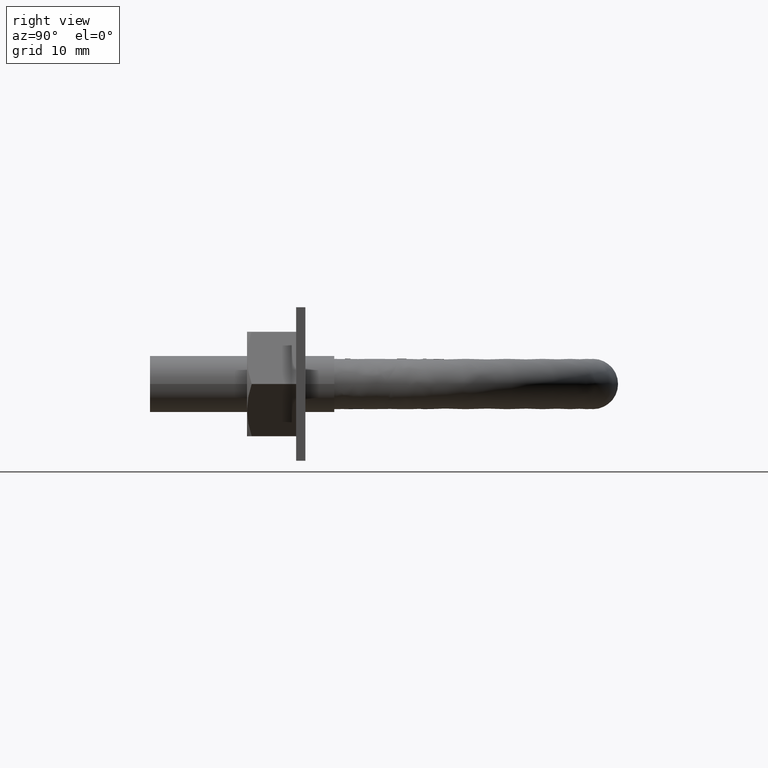
[diagram: clean part render]
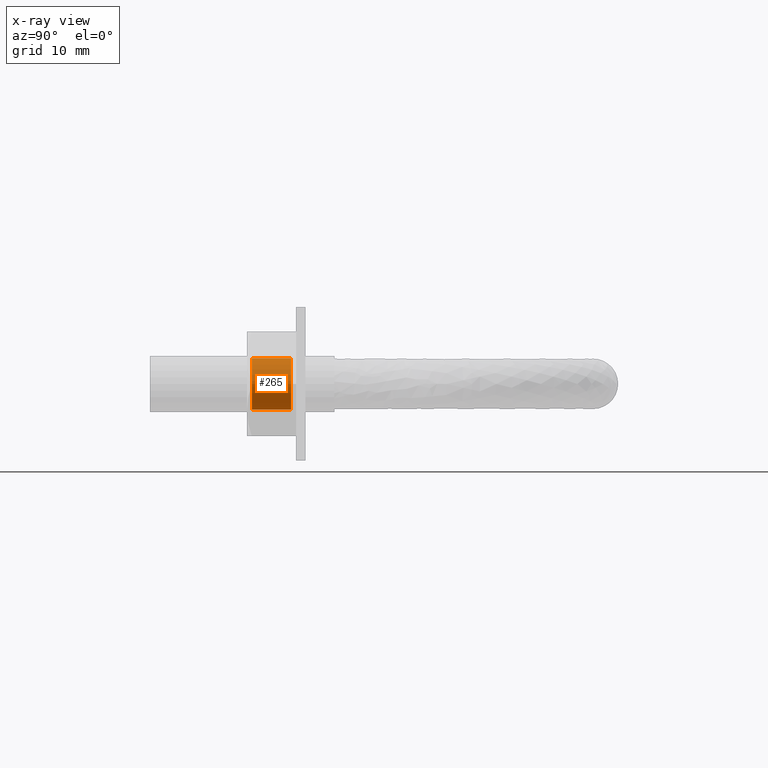
[diagram: x-ray — body ghosted, one internal face saturated and labeled with its STEP entity id]
A machine part, right view, then the same camera in x-ray: the body is ghosted and one INTERNAL B-rep face — a face not visible from any outside direction — is saturated and labeled: STEP entity #265.
In plain terms, the highlighted cylindrical surface (bore or boss wall) has radius 4.188 mm, axis along (-0, -1, -0).
Its self-contained STEP definition (entity closure, byte-faithful):
#265 = ADVANCED_FACE( '', ( #395, #396 ), #397, .F. );
#395 = FACE_OUTER_BOUND( '', #705, .T. );
#396 = FACE_OUTER_BOUND( '', #706, .T. );
#397 = CYLINDRICAL_SURFACE( '', #707, 4.18800000000000 );
#705 = EDGE_LOOP( '', ( #1105 ) );
#706 = EDGE_LOOP( '', ( #1106 ) );
#707 = AXIS2_PLACEMENT_3D( '', #1107, #1108, #1109 );
#1105 = ORIENTED_EDGE( '', *, *, #1393, .T. );
#1106 = ORIENTED_EDGE( '', *, *, #1392, .F. );
#1107 = CARTESIAN_POINT( '', ( -28.0000000000000, -6.20000000000000, 0.000000000000000 ) );
#1108 = DIRECTION( '', ( -6.12303176911189E-017, -1.00000000000000, -3.46487494474495E-065 ) );
#1109 = DIRECTION( '', ( 3.74915180455534E-033, -2.29561756065155E-049, -1.00000000000000 ) );
#1392 = EDGE_CURVE( '', #1620, #1620, #1621, .T. );
#1393 = EDGE_CURVE( '', #1622, #1622, #1623, .T. );
#1620 = VERTEX_POINT( '', #2020 );
#1621 = CIRCLE( '', #2021, 4.18800000000000 );
#1622 = VERTEX_POINT( '', #2022 );
#1623 = CIRCLE( '', #2023, 4.18800000000000 );
#2020 = CARTESIAN_POINT( '', ( -28.0000000000000, -13.3880000000000, -4.18800000000000 ) );
#2021 = AXIS2_PLACEMENT_3D( '', #2366, #2367, #2368 );
#2022 = CARTESIAN_POINT( '', ( -28.0000000000000, -7.01200000000000, -4.18800000000000 ) );
#2023 = AXIS2_PLACEMENT_3D( '', #2369, #2370, #2371 );
#2366 = CARTESIAN_POINT( '', ( -28.0000000000000, -13.3880000000000, 3.55934680377618E-065 ) );
#2367 = DIRECTION( '', ( 6.12303176911189E-017, 1.00000000000000, 3.46487494474495E-065 ) );
#2368 = DIRECTION( '', ( 3.74915180455534E-033, -2.29561756065155E-049, -1.00000000000000 ) );
#2369 = CARTESIAN_POINT( '', ( -28.0000000000000, -7.01200000000000, 4.02085365145556E-066 ) );
#2370 = DIRECTION( '', ( 6.12303176911189E-017, 1.00000000000000, 3.46487494474495E-065 ) );
#2371 = DIRECTION( '', ( 3.74915180455534E-033, -2.29561756065155E-049, -1.00000000000000 ) );